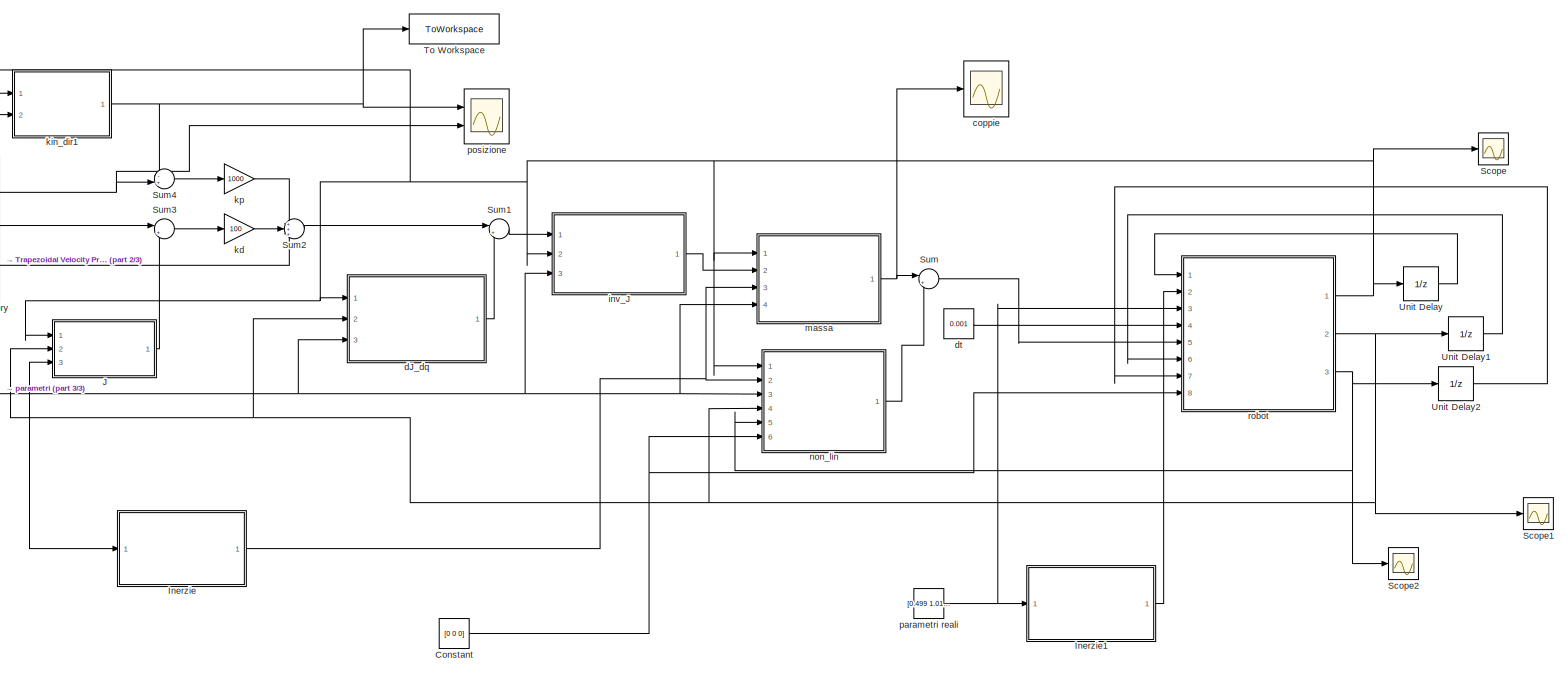
[diagram: root canvas - part 1/3, most of the canvas]
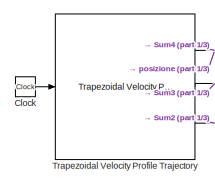
[diagram: root canvas - part 2/3, middle left region]
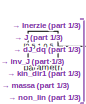
[diagram: root canvas - part 3/3, middle left region]
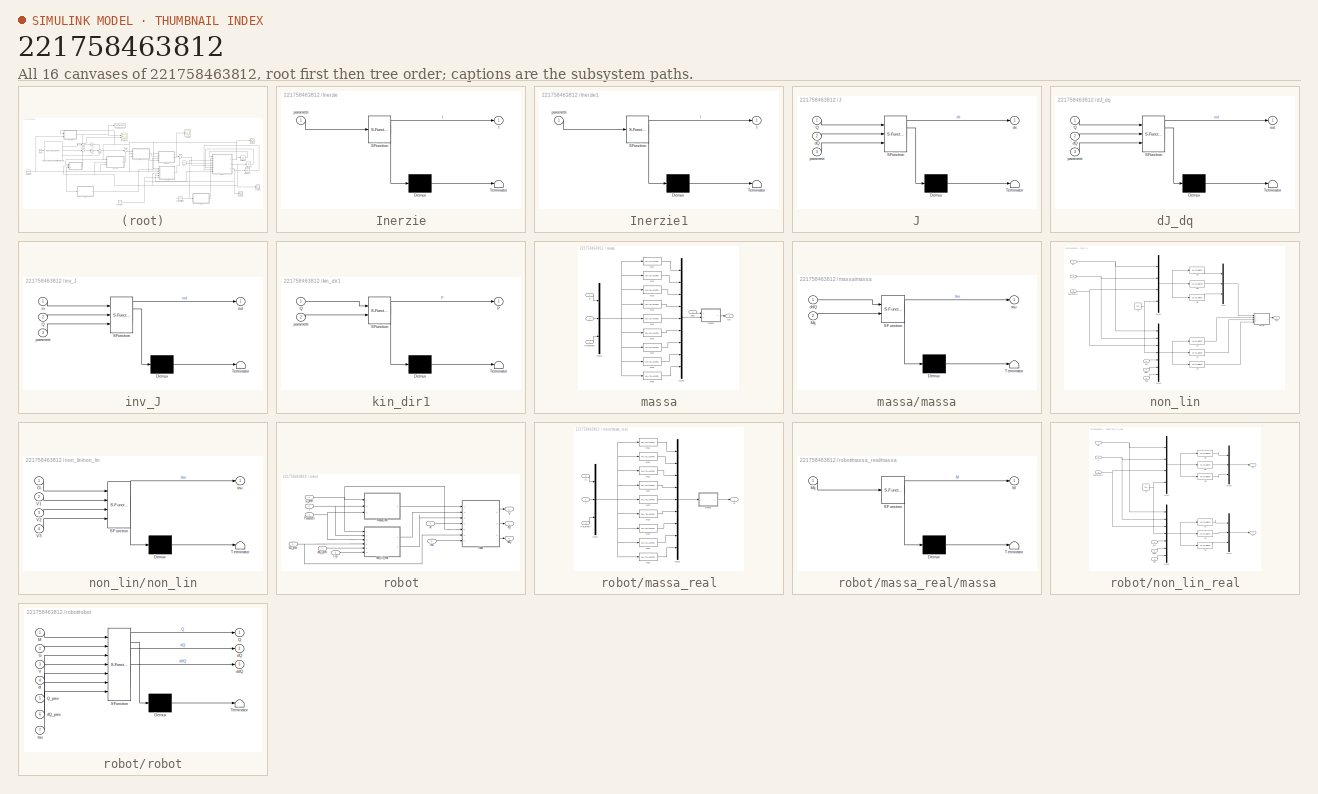
[diagram: thumbnail index - all 16 canvases of the model, root first then tree order]
MODEL slx_221758463812
KIND model
CONFIG AbsTol = auto
CONFIG EnableMultiTasking = off
CONFIG FixedStep = auto
CONFIG MaxStep = auto
CONFIG MinStep = auto
CONFIG RelTol = 1e-3
CONFIG SampleTimeConstraint = Unconstrained
CONFIG SolverName = VariableStepAuto
CONFIG StartTime = 0.0
CONFIG StopTime = 10.0
BLOCK [Clock] Clock
BLOCK [Constant] Constant
  Value = [0 0 0]
BLOCK [SubSystem] Inerzie
  ErrorFcn = Stateflow.Translate.translate
  PermitHierarchicalResolution = ExplicitOnly
  Ports = [1, 1]
  RequestExecContextInheritance = off
  SFBlockType = MATLAB Function
  TreatAsAtomicUnit = on
BLOCK [Demux] Inerzie/ Demux 
  Outputs = 1
  Ports = [1, 1]
BLOCK [S-Function] Inerzie/ SFunction 
  EnableBusSupport = on
  FunctionName = sf_sfun
  PortCounts = [1 2]
  Ports = [1, 2]
  SFcnIsStateOwnerBlock = off
  SFunctionDeploymentMode = off
  Tag = Stateflow S-Function 4
BLOCK [Terminator] Inerzie/ Terminator 
BLOCK [Outport] Inerzie/I
BLOCK [Inport] Inerzie/parametri
BLOCK [SubSystem] Inerzie1
  ErrorFcn = Stateflow.Translate.translate
  PermitHierarchicalResolution = ExplicitOnly
  Ports = [1, 1]
  RequestExecContextInheritance = off
  SFBlockType = MATLAB Function
  TreatAsAtomicUnit = on
BLOCK [Demux] Inerzie1/ Demux 
  Outputs = 1
  Ports = [1, 1]
BLOCK [S-Function] Inerzie1/ SFunction 
  EnableBusSupport = on
  FunctionName = sf_sfun
  PortCounts = [1 2]
  Ports = [1, 2]
  SFcnIsStateOwnerBlock = off
  SFunctionDeploymentMode = off
  Tag = Stateflow S-Function 8
BLOCK [Terminator] Inerzie1/ Terminator 
BLOCK [Outport] Inerzie1/I
BLOCK [Inport] Inerzie1/parametri
BLOCK [SubSystem] J
  ErrorFcn = Stateflow.Translate.translate
  PermitHierarchicalResolution = ExplicitOnly
  Ports = [3, 1]
  RequestExecContextInheritance = off
  SFBlockType = MATLAB Function
  TreatAsAtomicUnit = on
BLOCK [Demux] J/ Demux 
  Outputs = 1
  Ports = [1, 1]
BLOCK [S-Function] J/ SFunction 
  EnableBusSupport = on
  FunctionName = sf_sfun
  PortCounts = [3 2]
  Ports = [3, 2]
  SFcnIsStateOwnerBlock = off
  SFunctionDeploymentMode = off
  Tag = Stateflow S-Function 6
BLOCK [Terminator] J/ Terminator 
BLOCK [Inport] J/Q
BLOCK [Inport] J/dQ
  Port = 2
BLOCK [Outport] J/dx
BLOCK [Inport] J/parametri
  Port = 3
BLOCK [Scope] Scope
  Floating = off
  NumInputPorts = 1
  Ports = [1]
  ScopeSpecificationString = Simulink.scopes.TimeScopeBlockCfg('CurrentConfiguration', extmgr.ConfigurationSet(extmgr.Configuration('Core','General UI',true),extmgr.Configuration('Core','Source UI',true),extmgr.Configuration('Sources','WiredSimulink',true,'DataLoggingVariableName','ScopeData2'),extmgr.Configuration('Visuals','Time Domain',true),extmgr.Configuration('Tools','Plot Navigation',true),extmgr.Configuration('Tools',...<+40ch>
BLOCK [Scope] Scope1
  Floating = off
  NumInputPorts = 1
  Ports = [1]
  ScopeSpecificationString = Simulink.scopes.TimeScopeBlockCfg('CurrentConfiguration', extmgr.ConfigurationSet(extmgr.Configuration('Core','General UI',true),extmgr.Configuration('Core','Source UI',true),extmgr.Configuration('Sources','WiredSimulink',true,'DataLoggingVariableName','ScopeData3'),extmgr.Configuration('Visuals','Time Domain',true),extmgr.Configuration('Tools','Plot Navigation',true),extmgr.Configuration('Tools',...<+40ch>
BLOCK [Scope] Scope2
  Floating = off
  NumInputPorts = 1
  Ports = [1]
  ScopeSpecificationString = Simulink.scopes.TimeScopeBlockCfg('CurrentConfiguration', extmgr.ConfigurationSet(extmgr.Configuration('Core','General UI',true),extmgr.Configuration('Core','Source UI',true),extmgr.Configuration('Sources','WiredSimulink',true,'DataLoggingVariableName','ScopeData4'),extmgr.Configuration('Visuals','Time Domain',true),extmgr.Configuration('Tools','Plot Navigation',true),extmgr.Configuration('Tools',...<+40ch>
BLOCK [Sum] Sum
  Inputs = |++
  Ports = [2, 1]
BLOCK [Sum] Sum1
  Inputs = |+-
  Ports = [2, 1]
BLOCK [Sum] Sum2
  Inputs = +++
  Ports = [3, 1]
BLOCK [Sum] Sum3
  Inputs = |+-
  Ports = [2, 1]
BLOCK [Sum] Sum4
  Inputs = -+|
  Ports = [2, 1]
BLOCK [ToWorkspace] To Workspace
  FixptAsFi = on
  MaxDataPoints = inf
  Ports = [1]
  SampleTime = -1
  SaveFormat = Timeseries
  VariableName = simout
BLOCK [Reference] Trapezoidal Velocity Profile Trajectory  REF=robotcorelib/Trapezoidal Velocity Profile Trajectory
  Ports = [1, 3]
  SourceBlock = robotcorelib/Trapezoidal Velocity Profile Trajectory
  SourceProductBaseCode = NV,RO,RR,UV
  SourceType = robotics.slcore.internal.block.TrapVelTrajSys
BLOCK [UnitDelay] Unit Delay
  HasFrameUpgradeWarning = on
  InitialCondition = [0.2403    2.6314    0.9562]
  SampleTime = -1
BLOCK [UnitDelay] Unit Delay1
  HasFrameUpgradeWarning = on
  InitialCondition = [0 0 0]
  SampleTime = -1
BLOCK [UnitDelay] Unit Delay2
  HasFrameUpgradeWarning = on
  InitialCondition = [0 0 0]
  SampleTime = -1
BLOCK [Scope] coppie
  Floating = off
  NumInputPorts = 1
  Ports = [1]
  ScopeSpecificationString = Simulink.scopes.TimeScopeBlockCfg('CurrentConfiguration', extmgr.ConfigurationSet(extmgr.Configuration('Core','General UI',true),extmgr.Configuration('Core','Source UI',true),extmgr.Configuration('Sources','WiredSimulink',true,'DataLoggingVariableName','ScopeData1'),extmgr.Configuration('Visuals','Time Domain',true,'SerializedDisplays',{struct('MinYLimReal','-7.27948','MaxYLimReal','7.96846','YLab...<+1414ch>
BLOCK [SubSystem] dJ_dq
  ErrorFcn = Stateflow.Translate.translate
  PermitHierarchicalResolution = ExplicitOnly
  Ports = [3, 1]
  RequestExecContextInheritance = off
  SFBlockType = MATLAB Function
  TreatAsAtomicUnit = on
BLOCK [Demux] dJ_dq/ Demux 
  Outputs = 1
  Ports = [1, 1]
BLOCK [S-Function] dJ_dq/ SFunction 
  EnableBusSupport = on
  FunctionName = sf_sfun
  PortCounts = [3 2]
  Ports = [3, 2]
  SFcnIsStateOwnerBlock = off
  SFunctionDeploymentMode = off
  Tag = Stateflow S-Function 5
BLOCK [Terminator] dJ_dq/ Terminator 
BLOCK [Inport] dJ_dq/Q
BLOCK [Inport] dJ_dq/dQ
  Port = 2
BLOCK [Outport] dJ_dq/out
BLOCK [Inport] dJ_dq/parametri
  Port = 3
BLOCK [Constant] dt
  Value = 0.001
BLOCK [SubSystem] inv_J
  ErrorFcn = Stateflow.Translate.translate
  PermitHierarchicalResolution = ExplicitOnly
  Ports = [3, 1]
  RequestExecContextInheritance = off
  SFBlockType = MATLAB Function
  TreatAsAtomicUnit = on
BLOCK [Demux] inv_J/ Demux 
  Outputs = 1
  Ports = [1, 1]
BLOCK [S-Function] inv_J/ SFunction 
  EnableBusSupport = on
  FunctionName = sf_sfun
  PortCounts = [3 2]
  Ports = [3, 2]
  SFcnIsStateOwnerBlock = off
  SFunctionDeploymentMode = off
  Tag = Stateflow S-Function 3
BLOCK [Terminator] inv_J/ Terminator 
BLOCK [Inport] inv_J/Q
  Port = 2
BLOCK [Inport] inv_J/in
BLOCK [Outport] inv_J/out
BLOCK [Inport] inv_J/parametri
  Port = 3
BLOCK [Gain] kd
  Gain = 100
BLOCK [SubSystem] kin_dir1
  ErrorFcn = Stateflow.Translate.translate
  PermitHierarchicalResolution = ExplicitOnly
  Ports = [2, 1]
  RequestExecContextInheritance = off
  SFBlockType = MATLAB Function
  TreatAsAtomicUnit = on
BLOCK [Demux] kin_dir1/ Demux 
  Outputs = 1
  Ports = [1, 1]
BLOCK [S-Function] kin_dir1/ SFunction 
  EnableBusSupport = on
  FunctionName = sf_sfun
  PortCounts = [2 2]
  Ports = [2, 2]
  SFcnIsStateOwnerBlock = off
  SFunctionDeploymentMode = off
  Tag = Stateflow S-Function 7
BLOCK [Terminator] kin_dir1/ Terminator 
BLOCK [Outport] kin_dir1/P
BLOCK [Inport] kin_dir1/Q
BLOCK [Inport] kin_dir1/parametri
  Port = 2
BLOCK [Gain] kp
  Gain = 1000
BLOCK [SubSystem] massa
  Ports = [4, 1]
  RequestExecContextInheritance = off
BLOCK [Inport] massa/I
  Port = 3
BLOCK [MATLABFcn] massa/M11
  MATLABFcn = f_M11(u(1),u(2),u(3),u(4),u(5),u(6),u(7),u(8),u(9),u(10))
  Ports = [1, 1]
BLOCK [MATLABFcn] massa/M12
  MATLABFcn = f_M12(u(1),u(2),u(3),u(4),u(5),u(6),u(7),u(8),u(9),u(10))
  Ports = [1, 1]
BLOCK [MATLABFcn] massa/M13
  MATLABFcn = f_M13(u(1),u(2),u(3),u(4),u(5),u(6),u(7),u(8),u(9),u(10))
  Ports = [1, 1]
BLOCK [MATLABFcn] massa/M21
  MATLABFcn = f_M21(u(1),u(2),u(3),u(4),u(5),u(6),u(7),u(8),u(9),u(10))
  Ports = [1, 1]
BLOCK [MATLABFcn] massa/M22
  MATLABFcn = f_M22(u(1),u(2),u(3),u(4),u(5),u(6),u(7),u(8),u(9),u(10))
  Ports = [1, 1]
BLOCK [MATLABFcn] massa/M23
  MATLABFcn = f_M23(u(1),u(2),u(3),u(4),u(5),u(6),u(7),u(8),u(9),u(10))
  Ports = [1, 1]
BLOCK [MATLABFcn] massa/M31
  MATLABFcn = f_M31(u(1),u(2),u(3),u(4),u(5),u(6),u(7),u(8),u(9),u(10))
  Ports = [1, 1]
BLOCK [MATLABFcn] massa/M32
  MATLABFcn = f_M32(u(1),u(2),u(3),u(4),u(5),u(6),u(7),u(8),u(9),u(10))
  Ports = [1, 1]
BLOCK [MATLABFcn] massa/M33
  MATLABFcn = f_M33(u(1),u(2),u(3),u(4),u(5),u(6),u(7),u(8),u(9),u(10))
  Ports = [1, 1]
BLOCK [Mux] massa/Mux1
  DisplayOption = bar
  Inputs = 3
  Ports = [3, 1]
BLOCK [Mux] massa/Mux2
  DisplayOption = bar
  Inputs = 9
  Ports = [9, 1]
BLOCK [Inport] massa/Parametri
  Port = 4
BLOCK [Inport] massa/Q
BLOCK [Inport] massa/ddQ
  Port = 2
BLOCK [SubSystem] massa/massa
  ErrorFcn = Stateflow.Translate.translate
  PermitHierarchicalResolution = ExplicitOnly
  Ports = [2, 1]
  RequestExecContextInheritance = off
  SFBlockType = MATLAB Function
  TreatAsAtomicUnit = on
BLOCK [Demux] massa/massa/ Demux 
  Outputs = 1
  Ports = [1, 1]
BLOCK [S-Function] massa/massa/ SFunction 
  EnableBusSupport = on
  FunctionName = sf_sfun
  PortCounts = [2 2]
  Ports = [2, 2]
  SFcnIsStateOwnerBlock = off
  SFunctionDeploymentMode = off
  Tag = Stateflow S-Function 2
BLOCK [Terminator] massa/massa/ Terminator 
BLOCK [Inport] massa/massa/Mij
  Port = 2
BLOCK [Inport] massa/massa/ddQ
BLOCK [Outport] massa/massa/tau
BLOCK [Outport] massa/tau
BLOCK [SubSystem] non_lin
  Ports = [6, 1]
  RequestExecContextInheritance = off
BLOCK [Inport] non_lin/Fex
  Port = 6
BLOCK [MATLABFcn] non_lin/G1
  MATLABFcn = f_G1(u(1),u(2),u(3),u(4),u(5),u(6),u(7),u(8),u(9),u(10),u(11))
  Ports = [1, 1]
BLOCK [MATLABFcn] non_lin/G2
  MATLABFcn = f_G2(u(1),u(2),u(3),u(4),u(5),u(6),u(7),u(8),u(9),u(10),u(11))
  Ports = [1, 1]
BLOCK [MATLABFcn] non_lin/G3
  MATLABFcn = f_G3(u(1),u(2),u(3),u(4),u(5),u(6),u(7),u(8),u(9),u(10),u(11))
  Ports = [1, 1]
BLOCK [Inport] non_lin/I
  Port = 2
BLOCK [Mux] non_lin/Mux
  DisplayOption = bar
  Inputs = 3
  Ports = [3, 1]
BLOCK [Mux] non_lin/Mux1
  DisplayOption = bar
  Ports = [4, 1]
BLOCK [Mux] non_lin/Mux3
  DisplayOption = bar
  Inputs = 7
  Ports = [7, 1]
BLOCK [Inport] non_lin/Q
BLOCK [MATLABFcn] non_lin/V1
  MATLABFcn = f_V1(u(1),u(2),u(3),u(4),u(5),u(6),u(7),u(8),u(9),u(10),u(11),u(12),u(13),u(14),u(15),u(16),u(17),u(18),u(19),u(20))
  Ports = [1, 1]
BLOCK [MATLABFcn] non_lin/V2
  MATLABFcn = f_V2(u(1),u(2),u(3),u(4),u(5),u(6),u(7),u(8),u(9),u(10),u(11),u(12),u(13),u(14),u(15),u(16),u(17),u(18),u(19),u(20))
  Ports = [1, 1]
BLOCK [MATLABFcn] non_lin/V3
  MATLABFcn = f_V3(u(1),u(2),u(3),u(4),u(5),u(6),u(7),u(8),u(9),u(10),u(11),u(12),u(13),u(14),u(15),u(16),u(17),u(18),u(19),u(20))
  Ports = [1, 1]
BLOCK [Inport] non_lin/dQ
  Port = 4
BLOCK [Inport] non_lin/ddQ
  Port = 5
BLOCK [Constant] non_lin/g
  Value = 9.81
BLOCK [SubSystem] non_lin/non_lin
  ErrorFcn = Stateflow.Translate.translate
  PermitHierarchicalResolution = ExplicitOnly
  Ports = [4, 1]
  RequestExecContextInheritance = off
  SFBlockType = MATLAB Function
  TreatAsAtomicUnit = on
BLOCK [Demux] non_lin/non_lin/ Demux 
  Outputs = 1
  Ports = [1, 1]
BLOCK [S-Function] non_lin/non_lin/ SFunction 
  EnableBusSupport = on
  FunctionName = sf_sfun
  PortCounts = [4 2]
  Ports = [4, 2]
  SFcnIsStateOwnerBlock = off
  SFunctionDeploymentMode = off
  Tag = Stateflow S-Function 1
BLOCK [Terminator] non_lin/non_lin/ Terminator 
BLOCK [Inport] non_lin/non_lin/Gi
BLOCK [Inport] non_lin/non_lin/V1
  Port = 2
BLOCK [Inport] non_lin/non_lin/V2
  Port = 3
BLOCK [Inport] non_lin/non_lin/V3
  Port = 4
BLOCK [Outport] non_lin/non_lin/tau
BLOCK [Inport] non_lin/parametri
  Port = 3
BLOCK [Outport] non_lin/tau
BLOCK [Constant] parametri
  Value = [0.5 1 0.5 1]
BLOCK [Constant] parametri reali
  Value = [0.499 1.01 0.501 0.99]
BLOCK [Scope] posizione
  Floating = off
  NumInputPorts = 2
  Ports = [2]
  ScopeSpecificationString = Simulink.scopes.TimeScopeBlockCfg('CurrentConfiguration', extmgr.ConfigurationSet(extmgr.Configuration('Core','General UI',true),extmgr.Configuration('Core','Source UI',true),extmgr.Configuration('Sources','WiredSimulink',true),extmgr.Configuration('Visuals','Time Domain',true,'SerializedDisplays',{struct('MinYLimReal','-1.02275','MaxYLimReal','0.66923','YLabelReal','','MinYLimMag','0.00000','MaxY...<+1374ch>
BLOCK [SubSystem] robot
  Ports = [8, 3]
  RequestExecContextInheritance = off
BLOCK [Inport] robot/Fex
  Port = 8
BLOCK [Inport] robot/I
  Port = 2
BLOCK [Inport] robot/Parametri
  Port = 3
BLOCK [Outport] robot/Q
BLOCK [Inport] robot/Q_prev
BLOCK [Outport] robot/dQ
  Port = 2
BLOCK [Inport] robot/dQ_prev
  Port = 6
BLOCK [Outport] robot/ddQ
  Port = 3
BLOCK [Inport] robot/ddQ_prev
  Port = 7
BLOCK [Inport] robot/dt
  Port = 4
BLOCK [SubSystem] robot/massa_real
  Ports = [3, 1]
  RequestExecContextInheritance = off
BLOCK [Inport] robot/massa_real/I
  Port = 2
BLOCK [Outport] robot/massa_real/M
BLOCK [MATLABFcn] robot/massa_real/M11
  MATLABFcn = f_M11(u(1),u(2),u(3),u(4),u(5),u(6),u(7),u(8),u(9),u(10))
  Ports = [1, 1]
BLOCK [MATLABFcn] robot/massa_real/M12
  MATLABFcn = f_M12(u(1),u(2),u(3),u(4),u(5),u(6),u(7),u(8),u(9),u(10))
  Ports = [1, 1]
BLOCK [MATLABFcn] robot/massa_real/M13
  MATLABFcn = f_M13(u(1),u(2),u(3),u(4),u(5),u(6),u(7),u(8),u(9),u(10))
  Ports = [1, 1]
BLOCK [MATLABFcn] robot/massa_real/M21
  MATLABFcn = f_M21(u(1),u(2),u(3),u(4),u(5),u(6),u(7),u(8),u(9),u(10))
  Ports = [1, 1]
BLOCK [MATLABFcn] robot/massa_real/M22
  MATLABFcn = f_M22(u(1),u(2),u(3),u(4),u(5),u(6),u(7),u(8),u(9),u(10))
  Ports = [1, 1]
BLOCK [MATLABFcn] robot/massa_real/M23
  MATLABFcn = f_M23(u(1),u(2),u(3),u(4),u(5),u(6),u(7),u(8),u(9),u(10))
  Ports = [1, 1]
BLOCK [MATLABFcn] robot/massa_real/M31
  MATLABFcn = f_M31(u(1),u(2),u(3),u(4),u(5),u(6),u(7),u(8),u(9),u(10))
  Ports = [1, 1]
BLOCK [MATLABFcn] robot/massa_real/M32
  MATLABFcn = f_M32(u(1),u(2),u(3),u(4),u(5),u(6),u(7),u(8),u(9),u(10))
  Ports = [1, 1]
BLOCK [MATLABFcn] robot/massa_real/M33
  MATLABFcn = f_M33(u(1),u(2),u(3),u(4),u(5),u(6),u(7),u(8),u(9),u(10))
  Ports = [1, 1]
BLOCK [Mux] robot/massa_real/Mux1
  DisplayOption = bar
  Inputs = 3
  Ports = [3, 1]
BLOCK [Mux] robot/massa_real/Mux2
  DisplayOption = bar
  Inputs = 9
  Ports = [9, 1]
BLOCK [Inport] robot/massa_real/Parametri
  Port = 3
BLOCK [Inport] robot/massa_real/Q
BLOCK [SubSystem] robot/massa_real/massa
  ErrorFcn = Stateflow.Translate.translate
  PermitHierarchicalResolution = ExplicitOnly
  Ports = [1, 1]
  RequestExecContextInheritance = off
  SFBlockType = MATLAB Function
  TreatAsAtomicUnit = on
BLOCK [Demux] robot/massa_real/massa/ Demux 
  Outputs = 1
  Ports = [1, 1]
BLOCK [S-Function] robot/massa_real/massa/ SFunction 
  EnableBusSupport = on
  FunctionName = sf_sfun
  PortCounts = [1 2]
  Ports = [1, 2]
  SFcnIsStateOwnerBlock = off
  SFunctionDeploymentMode = off
  Tag = Stateflow S-Function 9
BLOCK [Terminator] robot/massa_real/massa/ Terminator 
BLOCK [Outport] robot/massa_real/massa/M
BLOCK [Inport] robot/massa_real/massa/Mij
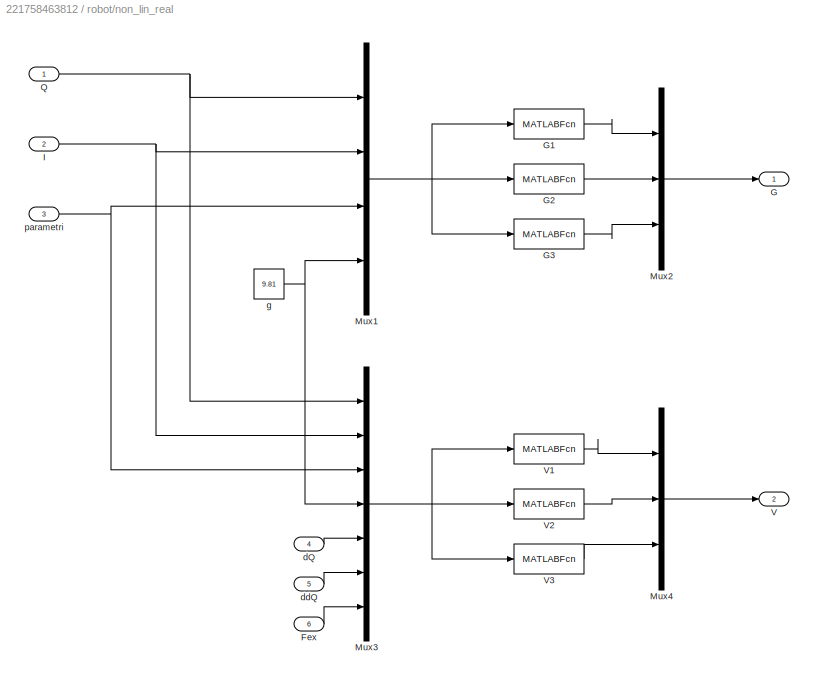
BLOCK [SubSystem] robot/non_lin_real
  Ports = [6, 2]
  RequestExecContextInheritance = off
BLOCK [Inport] robot/non_lin_real/Fex
  Port = 6
BLOCK [Outport] robot/non_lin_real/G
BLOCK [MATLABFcn] robot/non_lin_real/G1
  MATLABFcn = f_G1(u(1),u(2),u(3),u(4),u(5),u(6),u(7),u(8),u(9),u(10),u(11))
  Ports = [1, 1]
BLOCK [MATLABFcn] robot/non_lin_real/G2
  MATLABFcn = f_G2(u(1),u(2),u(3),u(4),u(5),u(6),u(7),u(8),u(9),u(10),u(11))
  Ports = [1, 1]
BLOCK [MATLABFcn] robot/non_lin_real/G3
  MATLABFcn = f_G3(u(1),u(2),u(3),u(4),u(5),u(6),u(7),u(8),u(9),u(10),u(11))
  Ports = [1, 1]
BLOCK [Inport] robot/non_lin_real/I
  Port = 2
BLOCK [Mux] robot/non_lin_real/Mux1
  DisplayOption = bar
  Ports = [4, 1]
BLOCK [Mux] robot/non_lin_real/Mux2
  DisplayOption = bar
  Inputs = 3
  Ports = [3, 1]
BLOCK [Mux] robot/non_lin_real/Mux3
  DisplayOption = bar
  Inputs = 7
  Ports = [7, 1]
BLOCK [Mux] robot/non_lin_real/Mux4
  DisplayOption = bar
  Inputs = 3
  Ports = [3, 1]
BLOCK [Inport] robot/non_lin_real/Q
BLOCK [Outport] robot/non_lin_real/V
  Port = 2
BLOCK [MATLABFcn] robot/non_lin_real/V1
  MATLABFcn = f_V1(u(1),u(2),u(3),u(4),u(5),u(6),u(7),u(8),u(9),u(10),u(11),u(12),u(13),u(14),u(15),u(16),u(17),u(18),u(19),u(20))
  Ports = [1, 1]
BLOCK [MATLABFcn] robot/non_lin_real/V2
  MATLABFcn = f_V2(u(1),u(2),u(3),u(4),u(5),u(6),u(7),u(8),u(9),u(10),u(11),u(12),u(13),u(14),u(15),u(16),u(17),u(18),u(19),u(20))
  Ports = [1, 1]
BLOCK [MATLABFcn] robot/non_lin_real/V3
  MATLABFcn = f_V3(u(1),u(2),u(3),u(4),u(5),u(6),u(7),u(8),u(9),u(10),u(11),u(12),u(13),u(14),u(15),u(16),u(17),u(18),u(19),u(20))
  Ports = [1, 1]
BLOCK [Inport] robot/non_lin_real/dQ
  Port = 4
BLOCK [Inport] robot/non_lin_real/ddQ
  Port = 5
BLOCK [Constant] robot/non_lin_real/g
  Value = 9.81
BLOCK [Inport] robot/non_lin_real/parametri
  Port = 3
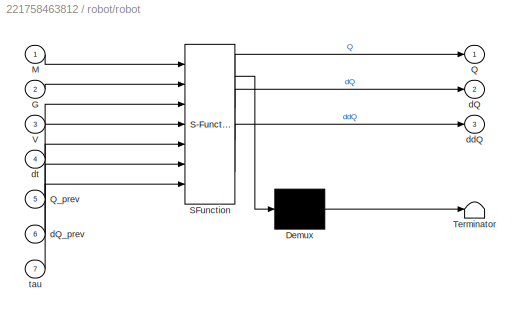
BLOCK [SubSystem] robot/robot
  ErrorFcn = Stateflow.Translate.translate
  PermitHierarchicalResolution = ExplicitOnly
  Ports = [7, 3]
  RequestExecContextInheritance = off
  SFBlockType = MATLAB Function
  TreatAsAtomicUnit = on
BLOCK [Demux] robot/robot/ Demux 
  Outputs = 1
  Ports = [1, 1]
BLOCK [S-Function] robot/robot/ SFunction 
  EnableBusSupport = on
  FunctionName = sf_sfun
  PortCounts = [7 4]
  Ports = [7, 4]
  SFcnIsStateOwnerBlock = off
  SFunctionDeploymentMode = off
  Tag = Stateflow S-Function 10
BLOCK [Terminator] robot/robot/ Terminator 
BLOCK [Inport] robot/robot/G
  Port = 2
BLOCK [Inport] robot/robot/M
BLOCK [Outport] robot/robot/Q
BLOCK [Inport] robot/robot/Q_prev
  Port = 5
BLOCK [Inport] robot/robot/V
  Port = 3
BLOCK [Outport] robot/robot/dQ
  Port = 2
BLOCK [Inport] robot/robot/dQ_prev
  Port = 6
BLOCK [Outport] robot/robot/ddQ
  Port = 3
BLOCK [Inport] robot/robot/dt
  Port = 4
BLOCK [Inport] robot/robot/tau
  Port = 7
BLOCK [Inport] robot/tau
  Port = 5
LINE Clock:1 -> Trapezoidal Velocity Profile Trajectory:1
NET Constant:1 -> non_lin:6, robot:8
LINE Inerzie1:1 -> robot:2
NET Inerzie:1 -> massa:3, non_lin:2
LINE J:1 -> Sum3:2
LINE Sum1:1 -> inv_J:1
LINE Sum2:1 -> Sum1:1
LINE Sum3:1 -> kd:1
LINE Sum4:1 -> kp:1
LINE Sum:1 -> robot:5
NET Trapezoidal Velocity Profile Trajectory:1 -> Sum4:2, posizione:2
LINE Trapezoidal Velocity Profile Trajectory:2 -> Sum3:1
LINE Trapezoidal Velocity Profile Trajectory:3 -> Sum2:3
LINE Unit Delay1:1 -> robot:6
LINE Unit Delay2:1 -> robot:7
LINE Unit Delay:1 -> robot:1
LINE dJ_dq:1 -> Sum1:2
LINE dt:1 -> robot:4
LINE inv_J:1 -> massa:2
LINE kd:1 -> Sum2:2
NET kin_dir1:1 -> Sum4:1, To Workspace:1, posizione:1
LINE kp:1 -> Sum2:1
LINE massa/I:1 -> massa/Mux1:2
LINE massa/M11:1 -> massa/Mux2:1
LINE massa/M12:1 -> massa/Mux2:2
LINE massa/M13:1 -> massa/Mux2:3
LINE massa/M21:1 -> massa/Mux2:4
LINE massa/M22:1 -> massa/Mux2:5
LINE massa/M23:1 -> massa/Mux2:6
LINE massa/M31:1 -> massa/Mux2:7
LINE massa/M32:1 -> massa/Mux2:8
LINE massa/M33:1 -> massa/Mux2:9
NET massa/Mux1:1 -> massa/M11:1, massa/M12:1, massa/M13:1, massa/M21:1, massa/M22:1, massa/M23:1, massa/M31:1, massa/M32:1, massa/M33:1
LINE massa/Mux2:1 -> massa/massa:2
LINE massa/Parametri:1 -> massa/Mux1:3
LINE massa/Q:1 -> massa/Mux1:1
LINE massa/ddQ:1 -> massa/massa:1
LINE massa/massa:1 -> massa/tau:1
NET massa:1 -> Sum:1, coppie:1
LINE non_lin/Fex:1 -> non_lin/Mux3:7
LINE non_lin/G1:1 -> non_lin/Mux:1
LINE non_lin/G2:1 -> non_lin/Mux:2
LINE non_lin/G3:1 -> non_lin/Mux:3
NET non_lin/I:1 -> non_lin/Mux1:2, non_lin/Mux3:2
NET non_lin/Mux1:1 -> non_lin/G1:1, non_lin/G2:1, non_lin/G3:1
NET non_lin/Mux3:1 -> non_lin/V1:1, non_lin/V2:1, non_lin/V3:1
LINE non_lin/Mux:1 -> non_lin/non_lin:1
NET non_lin/Q:1 -> non_lin/Mux1:1, non_lin/Mux3:1
LINE non_lin/V1:1 -> non_lin/non_lin:2
LINE non_lin/V2:1 -> non_lin/non_lin:3
LINE non_lin/V3:1 -> non_lin/non_lin:4
LINE non_lin/dQ:1 -> non_lin/Mux3:5
LINE non_lin/ddQ:1 -> non_lin/Mux3:6
NET non_lin/g:1 -> non_lin/Mux1:4, non_lin/Mux3:4
LINE non_lin/non_lin:1 -> non_lin/tau:1
NET non_lin/parametri:1 -> non_lin/Mux1:3, non_lin/Mux3:3
LINE non_lin:1 -> Sum:2
NET parametri reali:1 -> Inerzie1:1, robot:3
NET parametri:1 -> Inerzie:1, J:3, dJ_dq:3, inv_J:3, kin_dir1:2, massa:4, non_lin:3
LINE robot/Fex:1 -> robot/non_lin_real:6
NET robot/I:1 -> robot/massa_real:2, robot/non_lin_real:2
NET robot/Parametri:1 -> robot/massa_real:3, robot/non_lin_real:3
NET robot/Q_prev:1 -> robot/massa_real:1, robot/non_lin_real:1, robot/robot:5
NET robot/dQ_prev:1 -> robot/non_lin_real:4, robot/robot:6
LINE robot/ddQ_prev:1 -> robot/non_lin_real:5
LINE robot/dt:1 -> robot/robot:4
LINE robot/massa_real/I:1 -> robot/massa_real/Mux1:2
LINE robot/massa_real/M11:1 -> robot/massa_real/Mux2:1
LINE robot/massa_real/M12:1 -> robot/massa_real/Mux2:2
LINE robot/massa_real/M13:1 -> robot/massa_real/Mux2:3
LINE robot/massa_real/M21:1 -> robot/massa_real/Mux2:4
LINE robot/massa_real/M22:1 -> robot/massa_real/Mux2:5
LINE robot/massa_real/M23:1 -> robot/massa_real/Mux2:6
LINE robot/massa_real/M31:1 -> robot/massa_real/Mux2:7
LINE robot/massa_real/M32:1 -> robot/massa_real/Mux2:8
LINE robot/massa_real/M33:1 -> robot/massa_real/Mux2:9
NET robot/massa_real/Mux1:1 -> robot/massa_real/M11:1, robot/massa_real/M12:1, robot/massa_real/M13:1, robot/massa_real/M21:1, robot/massa_real/M22:1, robot/massa_real/M23:1, robot/massa_real/M31:1, robot/massa_real/M32:1, robot/massa_real/M33:1
LINE robot/massa_real/Mux2:1 -> robot/massa_real/massa:1
LINE robot/massa_real/Parametri:1 -> robot/massa_real/Mux1:3
LINE robot/massa_real/Q:1 -> robot/massa_real/Mux1:1
LINE robot/massa_real/massa:1 -> robot/massa_real/M:1
LINE robot/massa_real:1 -> robot/robot:1
LINE robot/non_lin_real/Fex:1 -> robot/non_lin_real/Mux3:7
LINE robot/non_lin_real/G1:1 -> robot/non_lin_real/Mux2:1
LINE robot/non_lin_real/G2:1 -> robot/non_lin_real/Mux2:2
LINE robot/non_lin_real/G3:1 -> robot/non_lin_real/Mux2:3
NET robot/non_lin_real/I:1 -> robot/non_lin_real/Mux1:2, robot/non_lin_real/Mux3:2
NET robot/non_lin_real/Mux1:1 -> robot/non_lin_real/G1:1, robot/non_lin_real/G2:1, robot/non_lin_real/G3:1
LINE robot/non_lin_real/Mux2:1 -> robot/non_lin_real/G:1
NET robot/non_lin_real/Mux3:1 -> robot/non_lin_real/V1:1, robot/non_lin_real/V2:1, robot/non_lin_real/V3:1
LINE robot/non_lin_real/Mux4:1 -> robot/non_lin_real/V:1
NET robot/non_lin_real/Q:1 -> robot/non_lin_real/Mux1:1, robot/non_lin_real/Mux3:1
LINE robot/non_lin_real/V1:1 -> robot/non_lin_real/Mux4:1
LINE robot/non_lin_real/V2:1 -> robot/non_lin_real/Mux4:2
LINE robot/non_lin_real/V3:1 -> robot/non_lin_real/Mux4:3
LINE robot/non_lin_real/dQ:1 -> robot/non_lin_real/Mux3:5
LINE robot/non_lin_real/ddQ:1 -> robot/non_lin_real/Mux3:6
NET robot/non_lin_real/g:1 -> robot/non_lin_real/Mux1:4, robot/non_lin_real/Mux3:4
NET robot/non_lin_real/parametri:1 -> robot/non_lin_real/Mux1:3, robot/non_lin_real/Mux3:3
LINE robot/non_lin_real:1 -> robot/robot:2
LINE robot/non_lin_real:2 -> robot/robot:3
LINE robot/robot:1 -> robot/Q:1
LINE robot/robot:2 -> robot/dQ:1
LINE robot/robot:3 -> robot/ddQ:1
LINE robot/tau:1 -> robot/robot:7
NET robot:1 -> J:1, Scope:1, Unit Delay:1, dJ_dq:1, inv_J:2, kin_dir1:1, massa:1, non_lin:1
NET robot:2 -> J:2, Scope1:1, Unit Delay1:1, dJ_dq:2, non_lin:4
NET robot:3 -> Scope2:1, Unit Delay2:1, non_lin:5
note: NET lines group one-source signal fan-out (src -> all destinations, sorted); 1:1 wires keep LINE
CHART non_lin/non_lin states=1 transitions=1
  STATE_LABEL 'eML_blk_kernel()'
  STATE_LABEL 'SCRIPT:\nfunction tau = non_lin(Gi,V1,V2,V3)\n\nG=[Gi(1);Gi(2);Gi(3)];\nV=[V1;V2;V3];\n\ntau=G+V;\nend'
CHART massa/massa states=1 transitions=1
  STATE_LABEL 'eML_blk_kernel()'
  STATE_LABEL 'SCRIPT:\nfunction  tau= massa(ddQ,Mij)\n\nM=[Mij(1) Mij(2) Mij(3);Mij(4) Mij(5) Mij(6);Mij(7) Mij(8) Mij(9)];\ntau=M*ddQ;\n\nend\n'
CHART inv_J states=1 transitions=1
  STATE_LABEL 'eML_blk_kernel()'
  STATE_LABEL 'SCRIPT:\nfunction out = inv_J(in,Q,parametri)\nl=parametri(1);\nd=parametri(2);\n% m1=parametri(3);\n% ma=parametri(4);\nxc1=Q(1);\nxc5=Q(2);\nq2=Q(3);\n\nJ =[...\n \n(l*sin(2*atan((2*l^2*sin(q2) + (3*l^4 + 4*cos(q2)*l^3*xc1 - 4*sin(q2)*l^3*xc5 - 2*cos(2*q2)*l^2*xc1^2 + 4*sin(2*q2)*l^2*xc1*xc5 + 2*cos(2*q2)*l^2*xc5^2 - 4*cos(q2)*l*xc1^3 + 4*sin(q2)*l*xc1^2*xc5 - 4*cos(q2)*l*xc1*xc5^2 + 4*sin(q2)*l*xc5^3 - xc1...<+3608ch>'
CHART Inerzie states=1 transitions=1
  STATE_LABEL 'eML_blk_kernel()'
  STATE_LABEL 'SCRIPT:\nfunction I = Inerzie(parametri)\nl=parametri(1);\nd=parametri(2);\n%m1=parametri(3);\nma=parametri(4);\n\n\nI2 = ma*l^2/4 + 1/12 *ma*l^2;\nI5 = I2;\nI3 = I2 + 1/12 * ma*d^2 + ma*(d^2/4+l^2/4);\nI=[I2;I5;I3];\nend\n'
CHART dJ_dq states=1 transitions=1
  STATE_LABEL 'eML_blk_kernel()'
  STATE_LABEL 'SCRIPT:\nfunction out = dJ_dq(Q,dQ,parametri)\nl=parametri(1);\n% d=parametri(2);\n% m1=parametri(3);\n% ma=parametri(4);\nxc1=Q(1);\nxc5=Q(2);\nq2=Q(3);\ndxc1=dQ(1);\ndxc5=dQ(2);\ndq2=dQ(3);\n\ndJ =... \n[dxc5*((l*sin(2*atan((2*l^2*sin(q2) + (3*l^4 + 4*cos(q2)*l^3*xc1 - 4*sin(q2)*l^3*xc5 - 2*cos(2*q2)*l^2*xc1^2 + 4*sin(2*q2)*l^2*xc1*xc5 + 2*cos(2*q2)*l^2*xc5^2 - 4*cos(q2)*l*xc1^3 + 4*sin(q2)*l*xc1^2*xc5 - 4*co...<+3608ch>'
CHART J states=1 transitions=1
  STATE_LABEL 'eML_blk_kernel()'
  STATE_LABEL 'SCRIPT:\nfunction dx = J(Q,dQ,parametri)\nl=parametri(1);\n% d=parametri(2);\n% m1=parametri(3);\n% ma=parametri(4);\nxc1=Q(1);\nxc5=Q(2);\nq2=Q(3);\n\nJ =[...\n \n(l*sin(2*atan((2*l^2*sin(q2) + (3*l^4 + 4*cos(q2)*l^3*xc1 - 4*sin(q2)*l^3*xc5 - 2*cos(2*q2)*l^2*xc1^2 + 4*sin(2*q2)*l^2*xc1*xc5 + 2*cos(2*q2)*l^2*xc5^2 - 4*cos(q2)*l*xc1^3 + 4*sin(q2)*l*xc1^2*xc5 - 4*cos(q2)*l*xc1*xc5^2 + 4*sin(q2)*l*xc5^3 - xc1^4 ...<+3608ch>'
CHART kin_dir1 states=1 transitions=1
  STATE_LABEL 'eML_blk_kernel()'
  STATE_LABEL 'SCRIPT:\nfunction P  = kin_dir_pos(Q,parametri) %P[X Y alpha]\nl=parametri(1);\nd=parametri(2);\nm1=parametri(3);\nma=parametri(4);\nxc1=Q(1);\nxc5=Q(2);\nq2=Q(3);\n\n\nq3 = ...\n -q2 - 2*atan((2*l*xc5 + (-(2*l*xc1 + l^2 + l^2*tan(q2/2)^2 + xc1^2 + xc5^2 + xc1^2*tan(q2/2)^2 + xc5^2*tan(q2/2)^2 - 4*l*xc5*tan(q2/2) - 2*l*xc1*tan(q2/2)^2)*(2*l*xc1 - 3*l^2 - 3*l^2*tan(q2/2)^2 + xc1^2 + xc5^2 + xc1^2*tan(q2/2)^2 +...<+1713ch>'
CHART Inerzie1 states=1 transitions=1
  STATE_LABEL 'eML_blk_kernel()'
  STATE_LABEL 'SCRIPT:\nfunction I = Inerzie(parametri)\nl=parametri(1);\nd=parametri(2);\n%m1=parametri(3);\nma=parametri(4);\n\n\nI2 = ma*l^2/4 + 1/12 *ma*l^2;\nI5 = I2;\nI3 = I2 + 1/12 * ma*d^2 + ma*(d^2/4+l^2/4);\nI=[I2;I5;I3];\nend\n'
CHART robot/massa_real/massa states=1 transitions=1
  STATE_LABEL 'eML_blk_kernel()'
  STATE_LABEL 'SCRIPT:\nfunction  M= matrice_massa(Mij)\n\nM=[Mij(1) Mij(2) Mij(3);Mij(4) Mij(5) Mij(6);Mij(7) Mij(8) Mij(9)];\n\nend\n'
CHART robot/robot states=1 transitions=1
  STATE_LABEL 'eML_blk_kernel()'
  STATE_LABEL 'SCRIPT:\nfunction [Q,dQ,ddQ] = robot(M,G,V,dt,Q_prev,dQ_prev,tau)\n%ddq=inv(M)*(tau-N)  (N=V+G)\nddQ=M\\(tau-V-G);\ndQ=dQ_prev+ddQ*dt;\nQ=Q_prev+dQ*dt;\nend'
CHART  states=0 transitions=0
CHART  states=0 transitions=0
CHART  states=0 transitions=0
CHART  states=0 transitions=0
CHART  states=0 transitions=0
CHART  states=0 transitions=0
CHART  states=0 transitions=0
CHART  states=0 transitions=0
CHART  states=0 transitions=0
CHART  states=0 transitions=0
